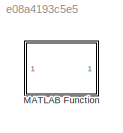
MODEL slx_e08a4193c5e5
KIND library
CONFIG AbsTol = auto
CONFIG EnableMultiTasking = off
CONFIG FixedStep = auto
CONFIG MaxStep = auto
CONFIG MinStep = auto
CONFIG RelTol = 1e-3
CONFIG SampleTimeConstraint = Unconstrained
CONFIG SolverName = VariableStepAuto
CONFIG StartTime = 0.0
CONFIG StopTime = 10.0
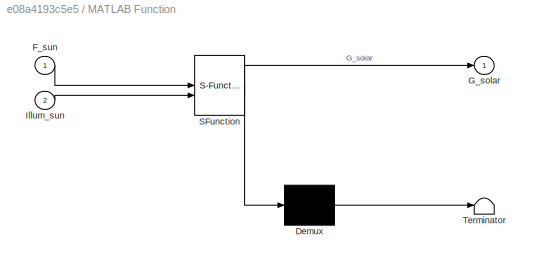
BLOCK [SubSystem] MATLAB Function
  ErrorFcn = Stateflow.Translate.translate
  PermitHierarchicalResolution = ExplicitOnly
  SFBlockType = MATLAB Function
  TreatAsAtomicUnit = on
BLOCK [Demux] MATLAB Function/ Demux 
  Outputs = 1
BLOCK [S-Function] MATLAB Function/ SFunction 
  EnableBusSupport = off
  FunctionName = sf_sfun
  PortCounts = [2 2]
  SFcnIsStateOwnerBlock = off
  SFunctionDeploymentMode = off
  Tag = Stateflow S-Function 2
BLOCK [Terminator] MATLAB Function/ Terminator 
BLOCK [Inport] MATLAB Function/F_sun
BLOCK [Outport] MATLAB Function/G_solar
BLOCK [Inport] MATLAB Function/Illum_sun
  Port = 2
CHART MATLAB Function states=1 transitions=1
  STATE_LABEL 'eML_blk_kernel()'
  STATE_LABEL 'SCRIPT:\nfunction G_solar = fcn(F_sun,Illum_sun)\n%G_solar: total solbestråling på overfladen (W/m^2)\n%alpha: sol-absorptans af materiale (forskellig for MLI og radiator)\n%A: areal af overflade (m^2)\n%F_sun: solens indfaldsvinkel-faktor (cos(theta) når solen rammer, 0 i skygge)\n% Illum_sun: mellem 0 og 1, 0 = skygge, 1 = direkte sollys\nG_s = 1361; % Solarkonstant W/m^2\n\nG_solar = G_s * F_sun * Illum...<+5ch>'
CHART  states=0 transitions=0
